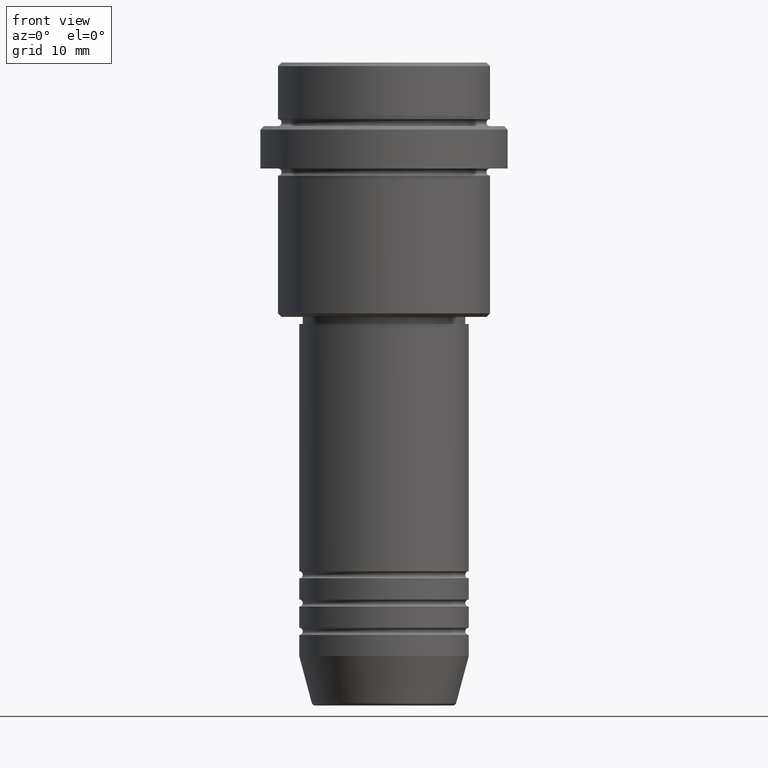
[diagram: clean part render]
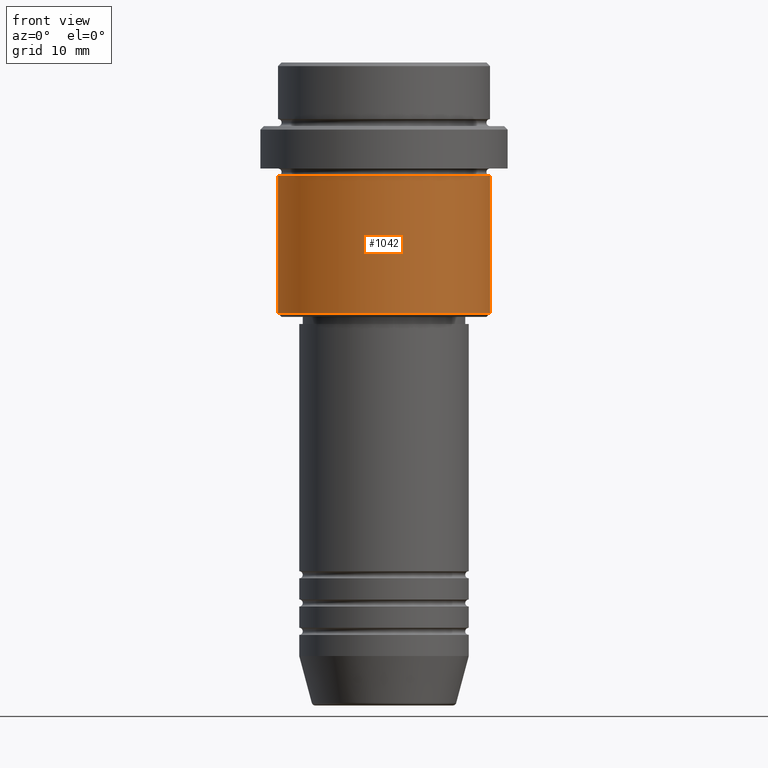
[diagram: same view with one face highlighted and labeled with its STEP entity id]
A machine part, front view. The second image highlights one B-rep face of the part: STEP entity #1042.
In plain terms, the highlighted cylindrical surface (partial cylindrical patch) has radius 15 mm, axis along (-0, -0, 1).
Its self-contained STEP definition (entity closure, byte-faithful):
#43 = AXIS2_PLACEMENT_3D ( 'NONE', #479, #1240, #1012 ) ;
#55 = DIRECTION ( 'NONE',  ( 1.000000000000000000, 0.000000000000000000, 0.000000000000000000 ) ) ;
#72 = CARTESIAN_POINT ( 'NONE',  ( 0.000000000000000000, 0.000000000000000000, -35.49999999999998579 ) ) ;
#149 = EDGE_CURVE ( 'NONE', #843, #609, #624, .T. ) ;
#167 = LINE ( 'NONE', #1046, #1146 ) ;
#225 = ORIENTED_EDGE ( 'NONE', *, *, #1110, .F. ) ;
#242 = FACE_OUTER_BOUND ( 'NONE', #1273, .T. ) ;
#285 = ORIENTED_EDGE ( 'NONE', *, *, #149, .F. ) ;
#307 = CARTESIAN_POINT ( 'NONE',  ( -15.00000000000000355, 1.836970198721029983E-15, -15.99999999999999289 ) ) ;
#324 = VERTEX_POINT ( 'NONE', #952 ) ;
#332 = CARTESIAN_POINT ( 'NONE',  ( 15.00000000000000000, 0.000000000000000000, -35.49999999999998579 ) ) ;
#479 = CARTESIAN_POINT ( 'NONE',  ( 0.000000000000000000, 0.000000000000000000, -15.99999999999999289 ) ) ;
#495 = EDGE_CURVE ( 'NONE', #1380, #609, #1404, .T. ) ;
#537 = CARTESIAN_POINT ( 'NONE',  ( 15.00000000000000000, 0.000000000000000000, 0.000000000000000000 ) ) ;
#574 = ORIENTED_EDGE ( 'NONE', *, *, #495, .T. ) ;
#608 = DIRECTION ( 'NONE',  ( -0.000000000000000000, -0.000000000000000000, 1.000000000000000000 ) ) ;
#609 = VERTEX_POINT ( 'NONE', #1135 ) ;
#624 = CIRCLE ( 'NONE', #43, 15.00000000000000178 ) ;
#631 = ORIENTED_EDGE ( 'NONE', *, *, #1217, .T. ) ;
#658 = DIRECTION ( 'NONE',  ( -0.000000000000000000, -0.000000000000000000, 1.000000000000000000 ) ) ;
#762 = AXIS2_PLACEMENT_3D ( 'NONE', #887, #608, #55 ) ;
#781 = VECTOR ( 'NONE', #658, 1000.000000000000000 ) ;
#843 = VERTEX_POINT ( 'NONE', #307 ) ;
#887 = CARTESIAN_POINT ( 'NONE',  ( 0.000000000000000000, 0.000000000000000000, 0.000000000000000000 ) ) ;
#952 = CARTESIAN_POINT ( 'NONE',  ( -15.00000000000000000, 1.836970198721029589E-15, -35.49999999999998579 ) ) ;
#963 = CIRCLE ( 'NONE', #1377, 15.00000000000000000 ) ;
#1012 = DIRECTION ( 'NONE',  ( 1.000000000000000000, 0.000000000000000000, 0.000000000000000000 ) ) ;
#1042 = ADVANCED_FACE ( 'NONE', ( #242 ), #1323, .T. ) ;
#1046 = CARTESIAN_POINT ( 'NONE',  ( -15.00000000000000000, 1.836970198721029589E-15, 0.000000000000000000 ) ) ;
#1110 = EDGE_CURVE ( 'NONE', #324, #843, #167, .T. ) ;
#1135 = CARTESIAN_POINT ( 'NONE',  ( 15.00000000000000178, 0.000000000000000000, -15.99999999999999289 ) ) ;
#1144 = DIRECTION ( 'NONE',  ( -0.000000000000000000, -0.000000000000000000, 1.000000000000000000 ) ) ;
#1146 = VECTOR ( 'NONE', #1144, 1000.000000000000000 ) ;
#1217 = EDGE_CURVE ( 'NONE', #324, #1380, #963, .T. ) ;
#1240 = DIRECTION ( 'NONE',  ( -0.000000000000000000, -0.000000000000000000, 1.000000000000000000 ) ) ;
#1265 = DIRECTION ( 'NONE',  ( -1.000000000000000000, 0.000000000000000000, 0.000000000000000000 ) ) ;
#1273 = EDGE_LOOP ( 'NONE', ( #225, #631, #574, #285 ) ) ;
#1323 = CYLINDRICAL_SURFACE ( 'NONE', #762, 15.00000000000000000 ) ;
#1377 = AXIS2_PLACEMENT_3D ( 'NONE', #72, #1401, #1265 ) ;
#1380 = VERTEX_POINT ( 'NONE', #332 ) ;
#1401 = DIRECTION ( 'NONE',  ( -0.000000000000000000, -0.000000000000000000, 1.000000000000000000 ) ) ;
#1404 = LINE ( 'NONE', #537, #781 ) ;